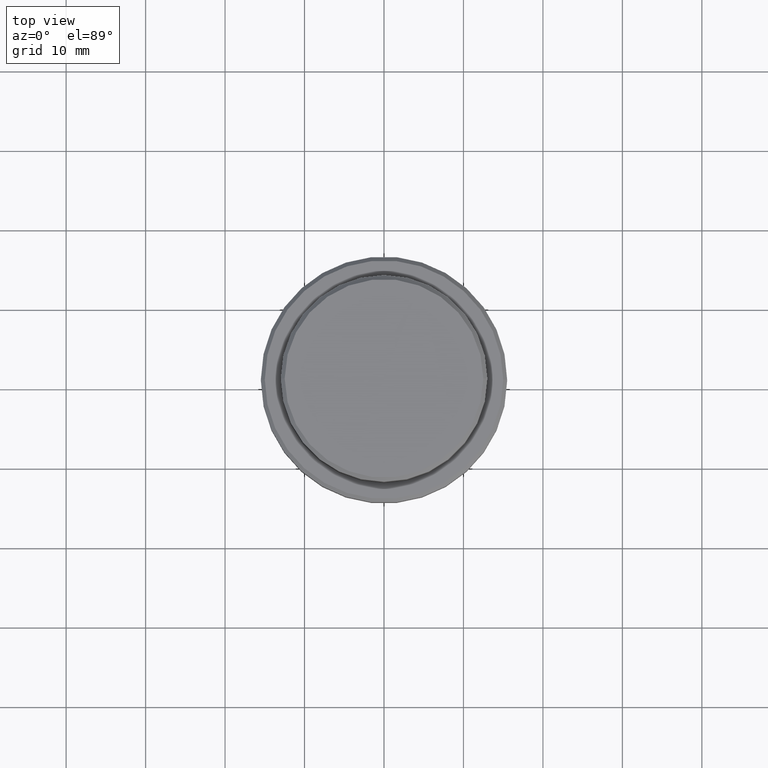
[diagram: clean part render]
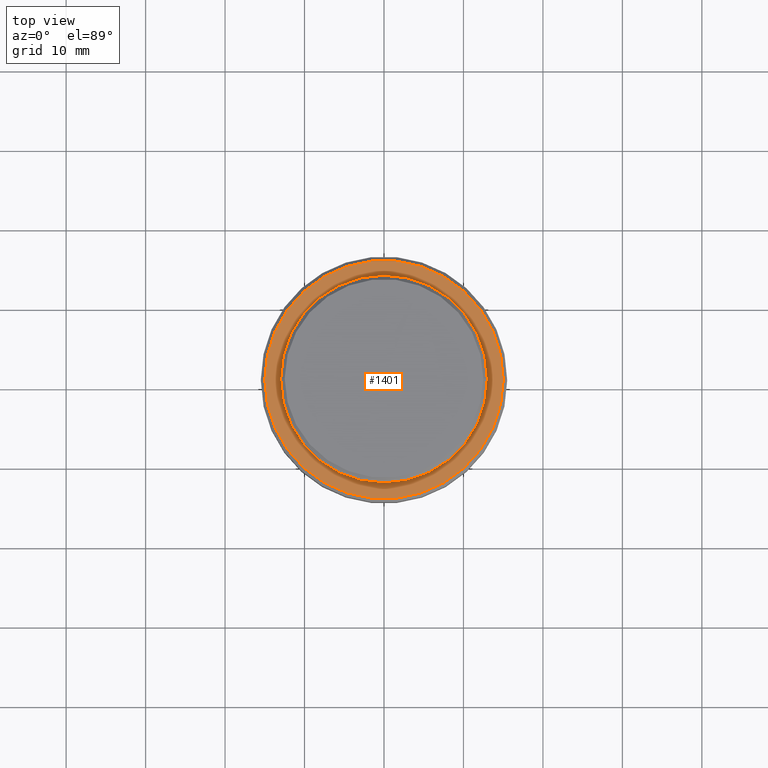
[diagram: same view with one face highlighted and labeled with its STEP entity id]
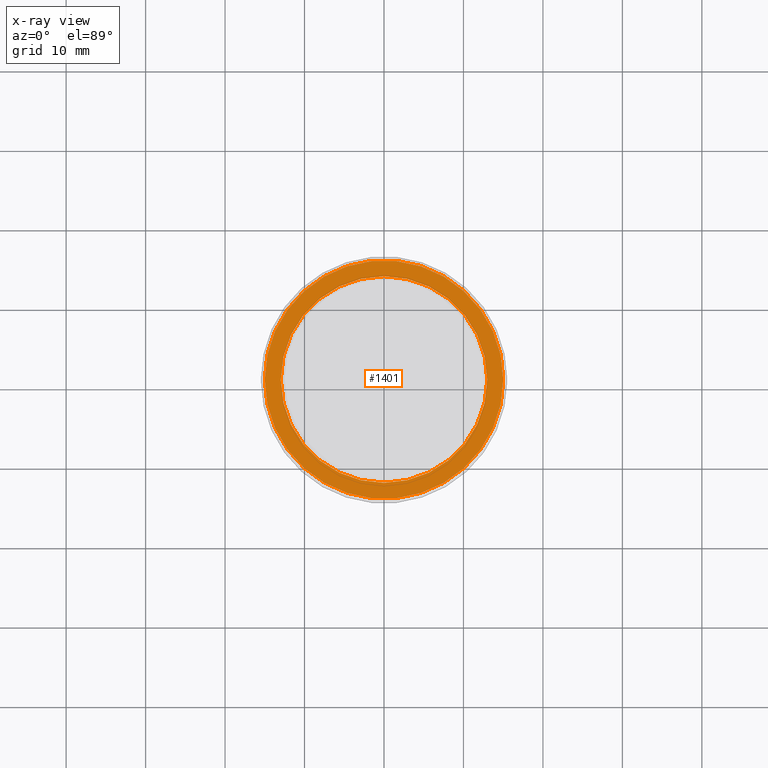
[diagram: x-ray of the same camera — body ghosted, the highlighted face saturated]
A machine part, top view. The second image highlights one B-rep face of the part: STEP entity #1401.
The next image is the same camera in x-ray: the body ghosted, the highlighted face saturated — about 0% of this face is hidden behind the body in this view.
In plain terms, the highlighted planar face has unit normal (0, -0, 1).
Its self-contained STEP definition (entity closure, byte-faithful):
#19 = CARTESIAN_POINT ( 'NONE',  ( 0.000000000000000000, 12.49999999999999289, -9.000000000000000000 ) ) ;
#116 = ORIENTED_EDGE ( 'NONE', *, *, #146, .T. ) ;
#117 = DIRECTION ( 'NONE',  ( 1.000000000000000000, 0.000000000000000000, 0.000000000000000000 ) ) ;
#120 = EDGE_CURVE ( 'NONE', #444, #783, #1228, .T. ) ;
#127 = PLANE ( 'NONE',  #447 ) ;
#132 = DIRECTION ( 'NONE',  ( 0.000000000000000000, 0.000000000000000000, -1.000000000000000000 ) ) ;
#146 = EDGE_CURVE ( 'NONE', #374, #1359, #156, .T. ) ;
#156 = CIRCLE ( 'NONE', #816, 14.99999999999998579 ) ;
#206 = DIRECTION ( 'NONE',  ( 0.000000000000000000, 0.000000000000000000, -1.000000000000000000 ) ) ;
#234 = ORIENTED_EDGE ( 'NONE', *, *, #120, .T. ) ;
#261 = DIRECTION ( 'NONE',  ( 1.000000000000000000, 0.000000000000000000, 0.000000000000000000 ) ) ;
#325 = EDGE_LOOP ( 'NONE', ( #234, #1160 ) ) ;
#343 = DIRECTION ( 'NONE',  ( 1.000000000000000000, 0.000000000000000000, 0.000000000000000000 ) ) ;
#351 = FACE_OUTER_BOUND ( 'NONE', #1263, .T. ) ;
#374 = VERTEX_POINT ( 'NONE', #673 ) ;
#434 = CARTESIAN_POINT ( 'NONE',  ( 0.000000000000000000, 0.000000000000000000, -9.000000000000000000 ) ) ;
#444 = VERTEX_POINT ( 'NONE', #724 ) ;
#447 = AXIS2_PLACEMENT_3D ( 'NONE', #19, #980, #343 ) ;
#580 = CARTESIAN_POINT ( 'NONE',  ( 0.000000000000000000, 0.000000000000000000, -9.000000000000000000 ) ) ;
#586 = DIRECTION ( 'NONE',  ( -0.000000000000000000, -0.000000000000000000, 1.000000000000000000 ) ) ;
#662 = CARTESIAN_POINT ( 'NONE',  ( 0.000000000000000000, 0.000000000000000000, -9.000000000000000000 ) ) ;
#668 = CARTESIAN_POINT ( 'NONE',  ( 14.99999999999998579, 1.867586368699712587E-15, -9.000000000000000000 ) ) ;
#673 = CARTESIAN_POINT ( 'NONE',  ( -14.99999999999998579, 0.000000000000000000, -9.000000000000000000 ) ) ;
#724 = CARTESIAN_POINT ( 'NONE',  ( 12.99999999999999467, 0.000000000000000000, -9.000000000000000000 ) ) ;
#758 = DIRECTION ( 'NONE',  ( -0.000000000000000000, -0.000000000000000000, 1.000000000000000000 ) ) ;
#783 = VERTEX_POINT ( 'NONE', #1380 ) ;
#816 = AXIS2_PLACEMENT_3D ( 'NONE', #434, #758, #117 ) ;
#903 = CARTESIAN_POINT ( 'NONE',  ( 0.000000000000000000, 0.000000000000000000, -9.000000000000000000 ) ) ;
#980 = DIRECTION ( 'NONE',  ( 0.000000000000000000, -0.000000000000000000, 1.000000000000000000 ) ) ;
#1091 = CIRCLE ( 'NONE', #1116, 12.99999999999999467 ) ;
#1097 = FACE_BOUND ( 'NONE', #325, .T. ) ;
#1111 = AXIS2_PLACEMENT_3D ( 'NONE', #662, #206, #1397 ) ;
#1116 = AXIS2_PLACEMENT_3D ( 'NONE', #580, #132, #1119 ) ;
#1119 = DIRECTION ( 'NONE',  ( 1.000000000000000000, 0.000000000000000000, 0.000000000000000000 ) ) ;
#1139 = CIRCLE ( 'NONE', #1320, 14.99999999999998579 ) ;
#1151 = EDGE_CURVE ( 'NONE', #783, #444, #1091, .T. ) ;
#1160 = ORIENTED_EDGE ( 'NONE', *, *, #1151, .T. ) ;
#1176 = ORIENTED_EDGE ( 'NONE', *, *, #1181, .T. ) ;
#1181 = EDGE_CURVE ( 'NONE', #1359, #374, #1139, .T. ) ;
#1228 = CIRCLE ( 'NONE', #1111, 12.99999999999999467 ) ;
#1263 = EDGE_LOOP ( 'NONE', ( #116, #1176 ) ) ;
#1320 = AXIS2_PLACEMENT_3D ( 'NONE', #903, #586, #261 ) ;
#1359 = VERTEX_POINT ( 'NONE', #668 ) ;
#1380 = CARTESIAN_POINT ( 'NONE',  ( -12.99999999999999467, 1.592040838891558504E-15, -9.000000000000000000 ) ) ;
#1397 = DIRECTION ( 'NONE',  ( 1.000000000000000000, 0.000000000000000000, 0.000000000000000000 ) ) ;
#1401 = ADVANCED_FACE ( 'NONE', ( #351, #1097 ), #127, .T. ) ;